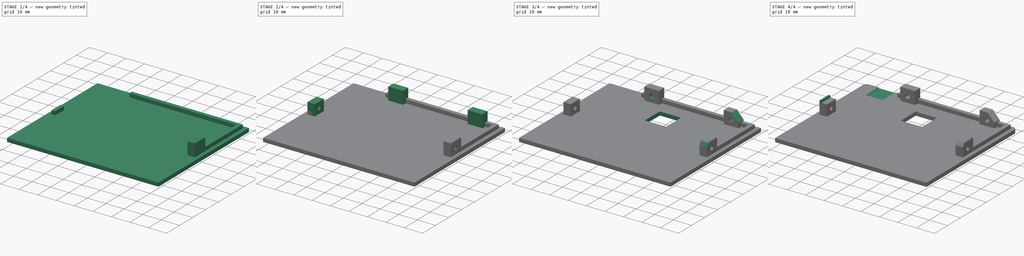
[diagram: build sequence overview — one tinted view per stage of 4, left to right]
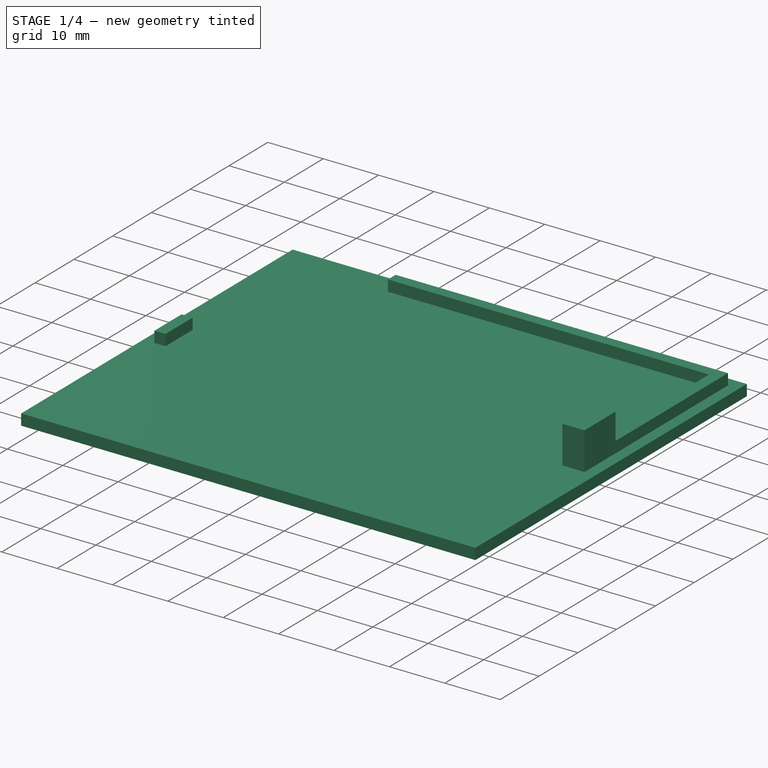
[diagram: stage 1 of 4 — iso view after this stage's code; geometry added in this stage tinted green]
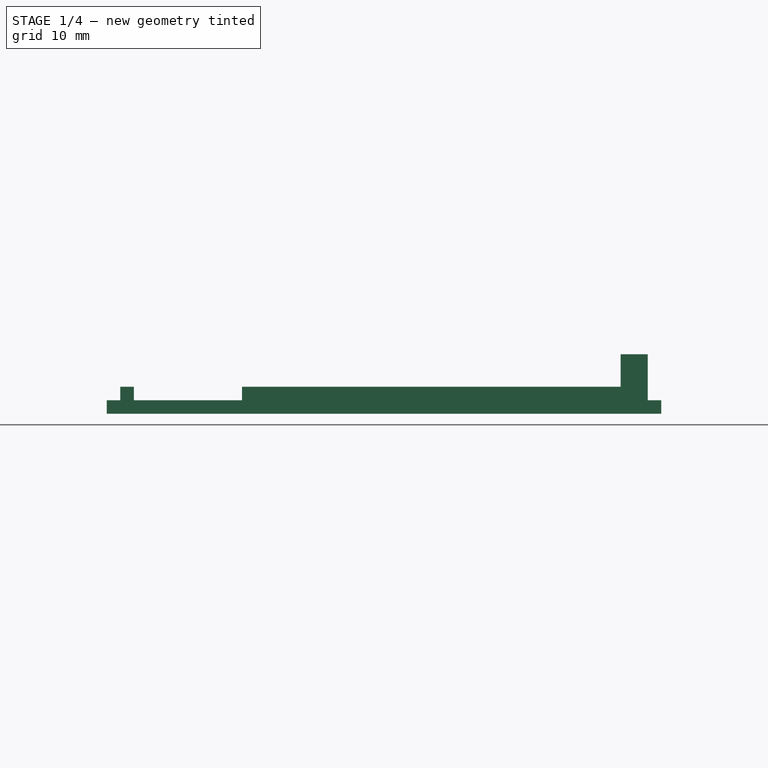
[diagram: stage 1 of 4 — front view after this stage's code; geometry added in this stage tinted green]
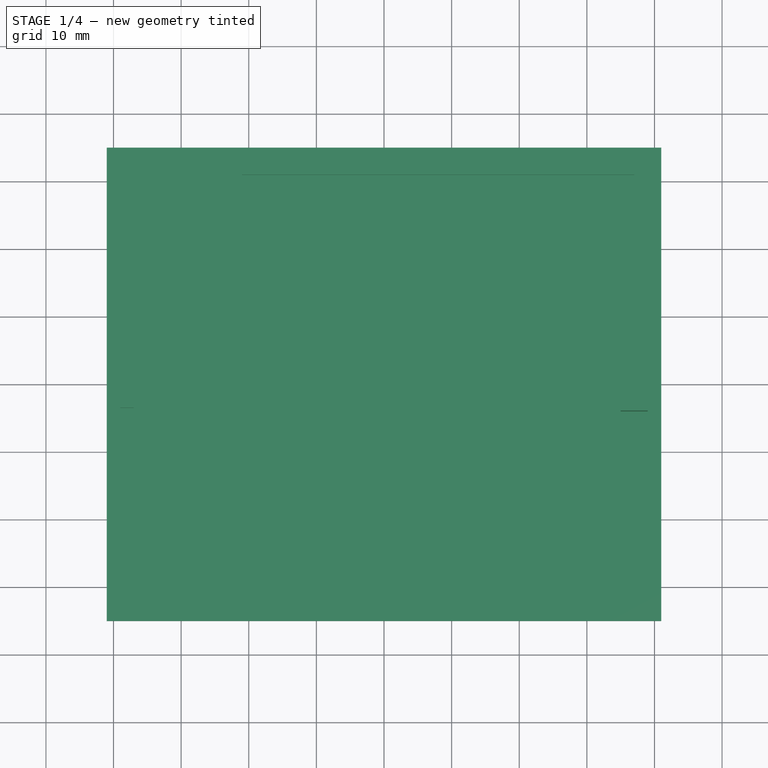
[diagram: stage 1 of 4 — top view after this stage's code; geometry added in this stage tinted green]
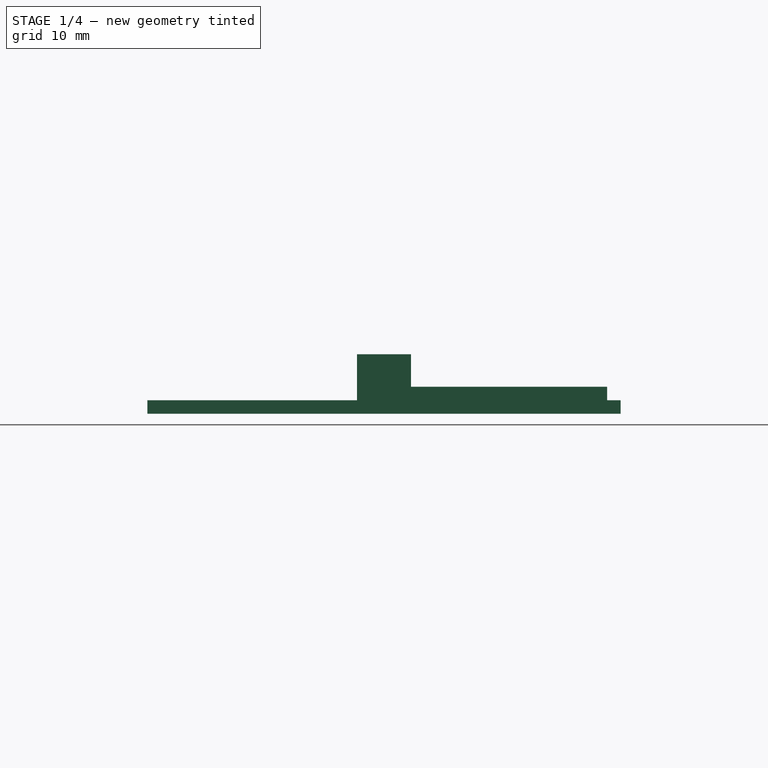
[diagram: stage 1 of 4 — right view after this stage's code; geometry added in this stage tinted green]
FCSTD DOCUMENT  (FreeCAD 0.21R33771 (Git))
Label: Back_alone
License: All rights reserved
LicenseURL: http://en.wikipedia.org/wiki/All_rights_reserved
objects: Sketcher::SketchObject×14, PartDesign::Pad×6, PartDesign::Pocket×6, PartDesign::Fillet×1, PartDesign::Body×1
note: 41 computed .brp shape members not serialized (recipe doc carries the construction recipe); baked Part::Feature solids carry a one-line shape summary decoded from their .brp

FEATURE [Sketcher::SketchObject] Sketch  label="Base"
  FullyConstrained = true
  MapMode = 5
  Support = -> [XY_Plane]
  sketch-geometry (5):
    g0: LineSegment StartX=-41 StartY=35 StartZ=0 EndX=-41 EndY=-35 EndZ=0
    g1: LineSegment StartX=-41 StartY=-35 StartZ=0 EndX=41 EndY=-35 EndZ=0
    g2: LineSegment StartX=41 StartY=-35 StartZ=0 EndX=41 EndY=35 EndZ=0
    g3: LineSegment StartX=41 StartY=35 StartZ=0 EndX=-41 EndY=35 EndZ=0
    g4: GeomPoint X=0 Y=0 Z=0
  constraints (12):
    c: Coincident(g0,g1)
    c: Coincident(g1,g2)
    c: Coincident(g2,g3)
    c: Coincident(g3,g0)
    c: Horizontal(g1)
    c: Horizontal(g3)
    c: Vertical(g0)
    c: Vertical(g2)
    c: Symmetric(g1,g0,g4)
    c: Coincident(g4,g-1)
    c: DistanceX(g3,g3) = 82
    c: DistanceY(g2,g2) = 70
FEATURE [PartDesign::Pad] Pad  label="Base001"
  Direction = (0,0,1)
  Length = 2
  Length2 = 10
  Profile = -> Sketch
  ReferenceAxis = -> Sketch [N_Axis]
  Type = 0
FEATURE [Sketcher::SketchObject] Sketch001
  ExternalGeometry = -> [Pad]
  FullyConstrained = true
  MapMode = 5
  Placement = pos=(0,0,2) rot=(0,0,1;0rad)
  Support = -> [Pad]
  sketch-geometry (12):
    g0: LineSegment StartX=-39 StartY=-3.5 StartZ=0 EndX=-39 EndY=3.5 EndZ=0
    g1: LineSegment StartX=-21 StartY=33 StartZ=0 EndX=39 EndY=33 EndZ=0
    g2: LineSegment StartX=39 StartY=33 StartZ=0 EndX=39 EndY=-4 EndZ=0
    g3: LineSegment StartX=39 StartY=-4 StartZ=0 EndX=37 EndY=-4 EndZ=0
    g4: LineSegment StartX=37 StartY=-4 StartZ=0 EndX=37 EndY=31 EndZ=0
    g5: LineSegment StartX=37 StartY=31 StartZ=0 EndX=-21 EndY=31 EndZ=0
    g6: LineSegment StartX=-37 StartY=3.5 StartZ=0 EndX=-37 EndY=-3.5 EndZ=0
    g7: LineSegment StartX=-37 StartY=-3.5 StartZ=0 EndX=-39 EndY=-3.5 EndZ=0
    g8: LineSegment StartX=-21 StartY=33 StartZ=0 EndX=-21 EndY=31 EndZ=0
    g9: LineSegment StartX=-39 StartY=3.5 StartZ=0 EndX=-37 EndY=3.5 EndZ=0
    g10: LineSegment StartX=-21 StartY=33 StartZ=0 EndX=-39 EndY=33 EndZ=0
    g11: LineSegment StartX=-39 StartY=33 StartZ=0 EndX=-39 EndY=3.5 EndZ=0
  constraints (35):
    c: Vertical(g0)
    c: Horizontal(g1)
    c: Coincident(g2,g1)
    c: Vertical(g2)
    c: Coincident(g3,g2)
    c: Horizontal(g3)
    c: Coincident(g4,g3)
    c: Vertical(g4)
    c: Coincident(g5,g4)
    c: Horizontal(g5)
    c: Vertical(g6)
    c: Coincident(g7,g6)
    c: Coincident(g7,g0)
    c: Horizontal(g7)
    c: Horizontal(g9)
    c: Vertical(g8)
    c: Equal(g9,g8)
    c: Equal(g8,g3)
    c: Coincident(g1,g8)
    c: Coincident(g5,g8)
    c: Coincident(g6,g9)
    c: Coincident(g0,g9)
    c: Coincident(g10,g1)
    c: Horizontal(g10)
    c: Coincident(g11,g10)
    c: Coincident(g11,g0)
    c: Vertical(g11)
    c: DistanceX(g10,g1) = 78
    c: DistanceY(g0,g0) = 7
    c: DistanceY(g1,g-3) = 2
    c: DistanceX(g1,g1) = 60
    c: DistanceY(g2,g-3) = 39
    c: DistanceX(g3,g3) = 2
    c: DistanceX(g1,g-3) = 2
    c: DistanceY(g0,g10) = 29.5
FEATURE [PartDesign::Pad] Pad001
  BaseFeature = -> Pad
  Direction = (0,0,1)
  Length = 2
  Length2 = 10
  Profile = -> Sketch001
  ReferenceAxis = -> Sketch001 [N_Axis]
  Type = 0
FEATURE [Sketcher::SketchObject] Sketch011
  ExternalGeometry = -> [Pad001]
  FullyConstrained = true
  MapMode = 5
  Placement = pos=(39,0,0) rot=(0.57735,0.57735,0.57735;2.0944rad)
  Support = -> [Pad001]
  sketch-geometry (4):
    g0: LineSegment StartX=4 StartY=2 StartZ=0 EndX=4 EndY=8.8 EndZ=0
    g1: LineSegment StartX=-4 StartY=2 StartZ=0 EndX=-4 EndY=8.8 EndZ=0
    g2: LineSegment StartX=4 StartY=8.8 StartZ=0 EndX=-4 EndY=8.8 EndZ=0
    g3: LineSegment StartX=-4 StartY=2 StartZ=0 EndX=4 EndY=2 EndZ=0
  constraints (12):
    c: Vertical(g0)
    c: Vertical(g1)
    c: Coincident(g2,g0)
    c: Coincident(g2,g1)
    c: Horizontal(g2)
    c: DistanceX(g0,g-3) = 31
    c: DistanceY(g-3,g0) = 6.8
    c: Coincident(g3,g1)
    c: Coincident(g3,g0)
    c: Horizontal(g3)
    c: Horizontal(g0,g-3)
    c: DistanceX(g2,g2) = 8
FEATURE [Sketcher::SketchObject] Sketch010
  ExternalGeometry = -> [Pad001]
  FullyConstrained = true
  MapMode = 5
  Placement = pos=(0,33,0) rot=(0,0.707107,0.707107;3.14159rad)
  Support = -> [Pad001]
  sketch-geometry (8):
    g0: LineSegment StartX=-25 StartY=8.8 StartZ=0 EndX=-25 EndY=2 EndZ=0
    g1: LineSegment StartX=18 StartY=8.8 StartZ=0 EndX=18 EndY=2 EndZ=0
    g2: LineSegment StartX=18 StartY=8.8 StartZ=0 EndX=10 EndY=8.8 EndZ=0
    g3: LineSegment StartX=10 StartY=8.8 StartZ=0 EndX=10 EndY=2 EndZ=0
    g4: LineSegment StartX=10 StartY=2 StartZ=0 EndX=18 EndY=2 EndZ=0
    g5: LineSegment StartX=-25 StartY=8.8 StartZ=0 EndX=-33 EndY=8.8 EndZ=0
    g6: LineSegment StartX=-33 StartY=8.8 StartZ=0 EndX=-33 EndY=2 EndZ=0
    g7: LineSegment StartX=-33 StartY=2 StartZ=0 EndX=-25 EndY=2 EndZ=0
  constraints (24):
    c: Vertical(g1)
    c: Vertical(g0)
    c: Equal(g1,g0)
    c: Horizontal(g-3,g0)
    c: Horizontal(g0,g1)
    c: DistanceX(g-3,g0) = 14
    c: DistanceX(g-3,g1) = 57
    c: Coincident(g2,g1)
    c: Horizontal(g2)
    c: Coincident(g3,g2)
    c: Vertical(g3)
    c: Coincident(g4,g3)
    c: Coincident(g4,g1)
    c: Horizontal(g4)
    c: Coincident(g5,g0)
    c: Horizontal(g5)
    c: Coincident(g6,g5)
    c: Coincident(g7,g6)
    c: Coincident(g7,g0)
    c: Vertical(g6)
    c: Horizontal(g7)
    c: DistanceX(g5,g5) = 8
    c: DistanceY(g6,g6) = 6.8
    c: Equal(g5,g2)
FEATURE [PartDesign::Pad] Pad002
  BaseFeature = -> Pad001
  Direction = (1,0,0)
  Length = 4
  Length2 = 10
  Profile = -> Sketch011
  ReferenceAxis = -> Sketch011 [N_Axis]
  Reversed = true
  Type = 0
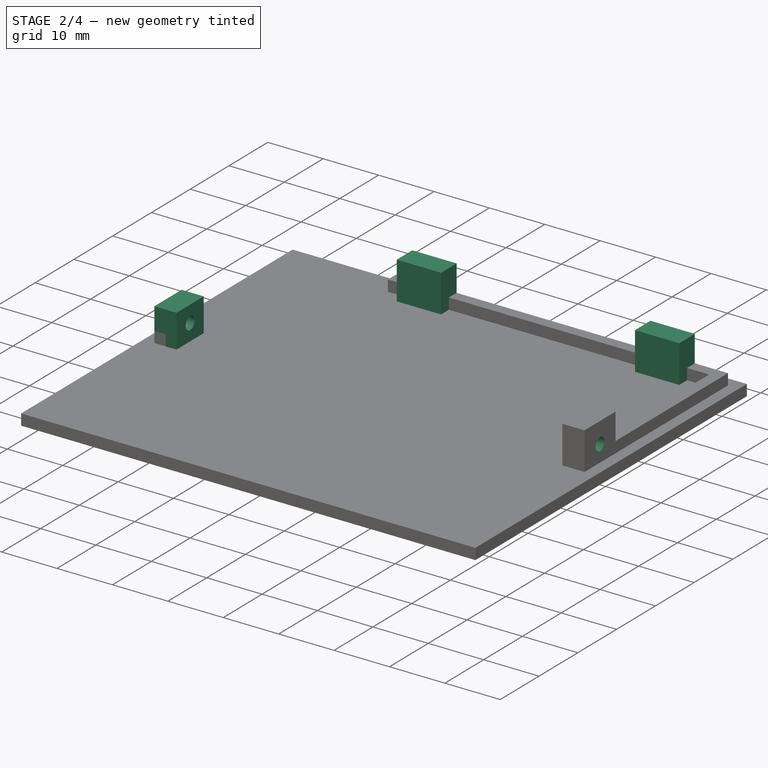
[diagram: stage 2 of 4 — iso view after this stage's code; geometry added in this stage tinted green]
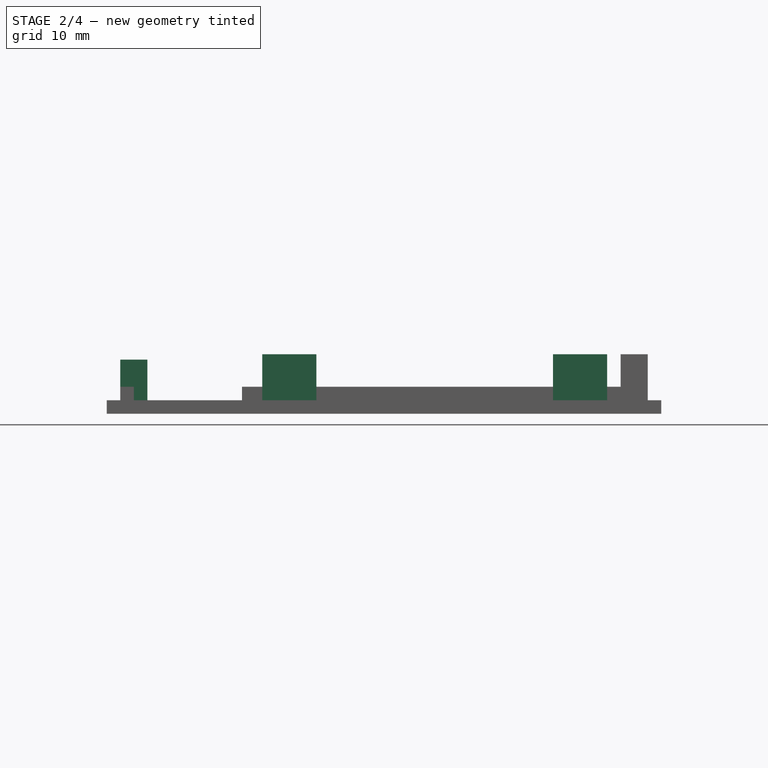
[diagram: stage 2 of 4 — front view after this stage's code; geometry added in this stage tinted green]
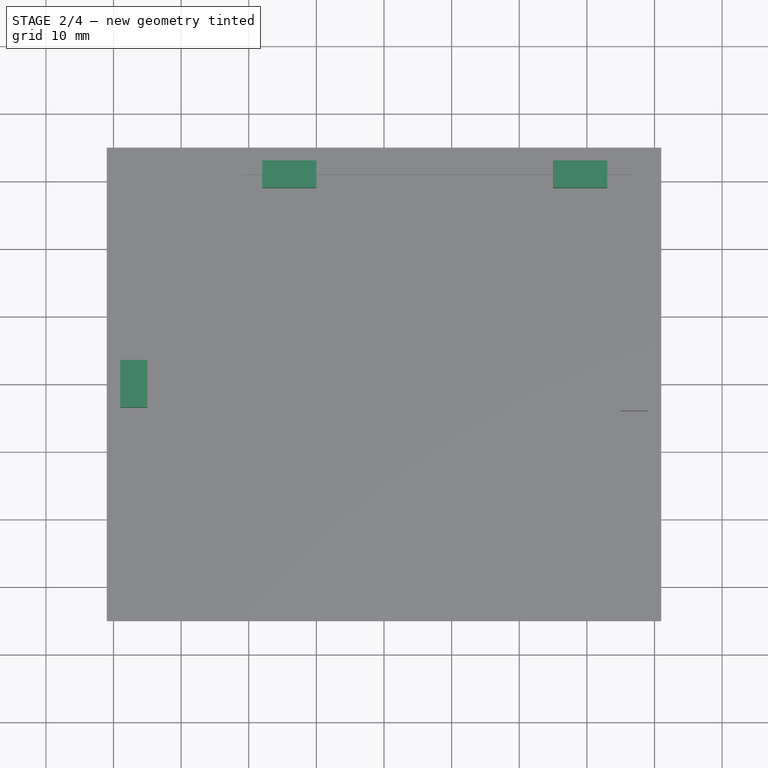
[diagram: stage 2 of 4 — top view after this stage's code; geometry added in this stage tinted green]
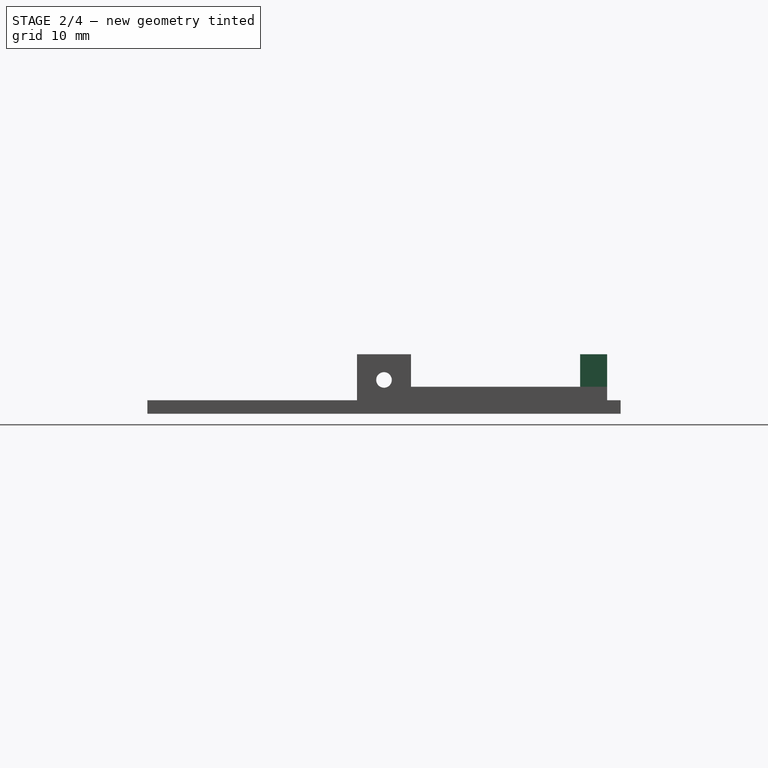
[diagram: stage 2 of 4 — right view after this stage's code; geometry added in this stage tinted green]
FEATURE [Sketcher::SketchObject] Sketch012
  ExternalGeometry = -> [Pad002]
  FullyConstrained = true
  MapMode = 5
  Placement = pos=(-39,0,0) rot=(0.57735,-0.57735,-0.57735;2.0944rad)
  Support = -> [Pad002]
  sketch-geometry (4):
    g0: LineSegment StartX=-3.5 StartY=8 StartZ=0 EndX=3.5 EndY=8 EndZ=0
    g1: LineSegment StartX=3.5 StartY=8 StartZ=0 EndX=3.5 EndY=2 EndZ=0
    g2: LineSegment StartX=3.5 StartY=2 StartZ=0 EndX=-3.5 EndY=2 EndZ=0
    g3: LineSegment StartX=-3.5 StartY=2 StartZ=0 EndX=-3.5 EndY=8 EndZ=0
  constraints (10):
    c: Coincident(g0,g1)
    c: Coincident(g1,g2)
    c: Coincident(g2,g3)
    c: Coincident(g3,g0)
    c: Horizontal(g0)
    c: Vertical(g1)
    c: Vertical(g3)
    c: Coincident(g1,g-3)
    c: Coincident(g2,g-3)
    c: DistanceY(g1,g1) = 6
FEATURE [PartDesign::Pad] Pad003
  BaseFeature = -> Pad002
  Direction = (-1,0,0)
  Length = 4
  Length2 = 10
  Profile = -> Sketch012
  ReferenceAxis = -> Sketch012 [N_Axis]
  Reversed = true
  Type = 0
FEATURE [PartDesign::Pad] Pad004
  BaseFeature = -> Pad003
  Direction = (0,1,-2e-16)
  Length = 4
  Length2 = 10
  Profile = -> Sketch010
  ReferenceAxis = -> Sketch010 [N_Axis]
  Reversed = true
  Type = 0
FEATURE [Sketcher::SketchObject] Sketch013
  ExternalGeometry = -> [Pad004]
  FullyConstrained = true
  MapMode = 5
  Placement = pos=(39,0,0) rot=(0.57735,0.57735,0.57735;2.0944rad)
  Support = -> [Pad004]
  sketch-geometry (1):
    g0: Circle CenterX=-4e-16 CenterY=5 CenterZ=0 NormalX=0 NormalY=0 NormalZ=1 AngleXU=0 Radius=1.15
  constraints (3):
    c: Diameter(g0) = 2.3
    c: DistanceY(g-3,g0) = 3
    c: DistanceX(g0,g-3) = 4
FEATURE [PartDesign::Pocket] Pocket
  BaseFeature = -> Pad004
  Direction = (-1,0,0)
  Length = 5
  Length2 = 5
  Profile = -> Sketch013
  ReferenceAxis = -> Sketch013 [N_Axis]
  Type = 1
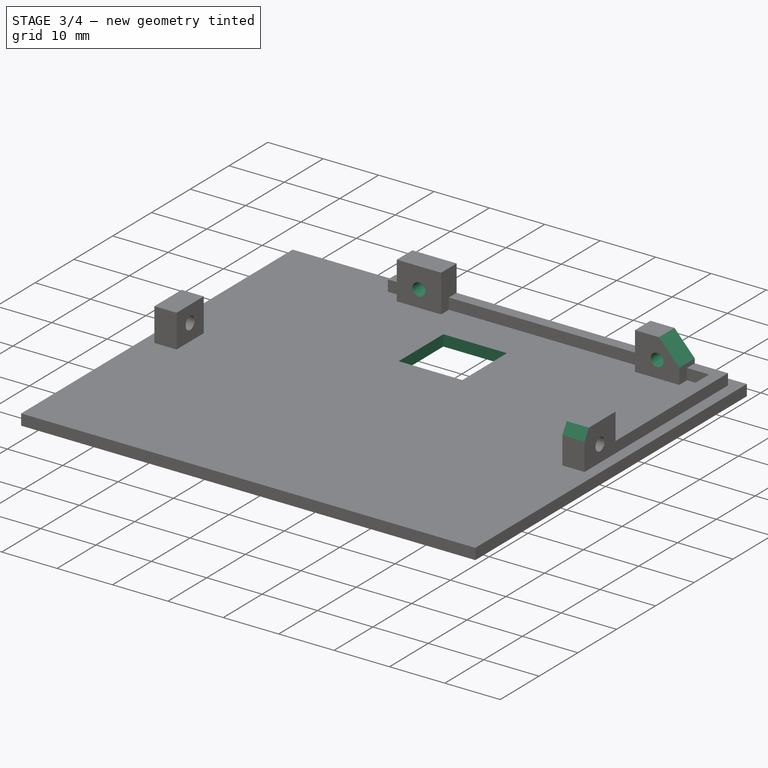
[diagram: stage 3 of 4 — iso view after this stage's code; geometry added in this stage tinted green]
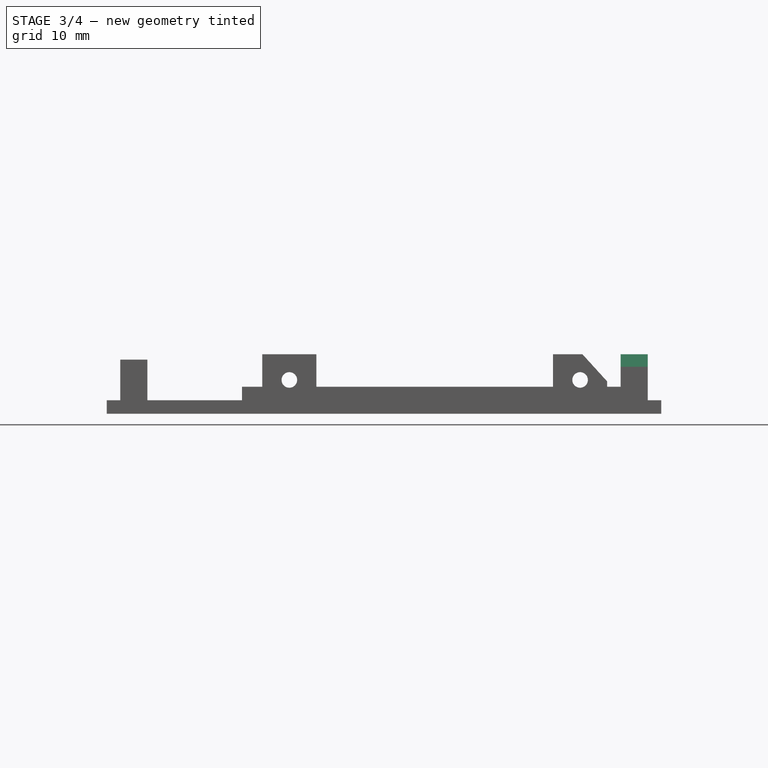
[diagram: stage 3 of 4 — front view after this stage's code; geometry added in this stage tinted green]
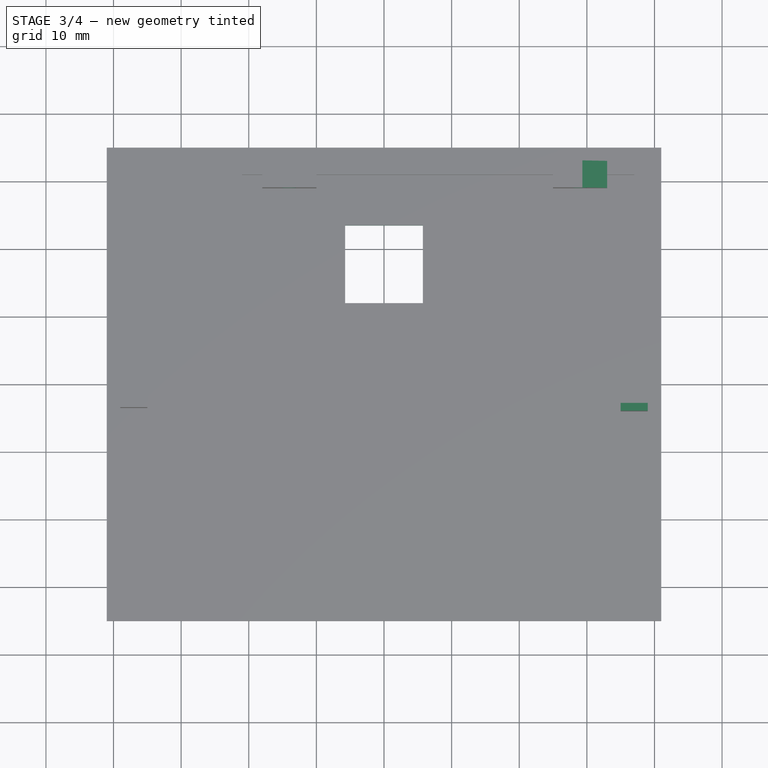
[diagram: stage 3 of 4 — top view after this stage's code; geometry added in this stage tinted green]
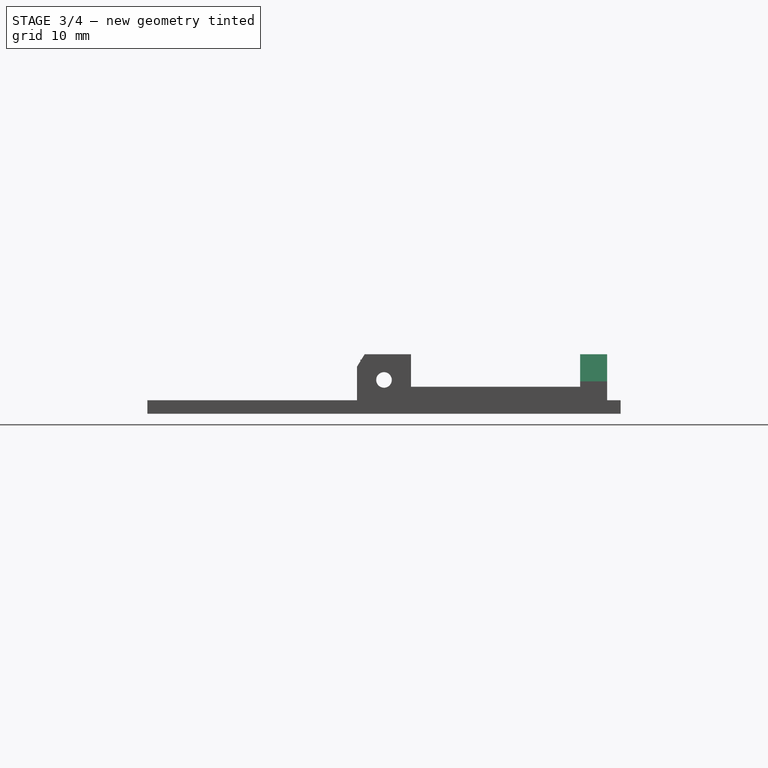
[diagram: stage 3 of 4 — right view after this stage's code; geometry added in this stage tinted green]
FEATURE [Sketcher::SketchObject] Sketch014
  ExternalGeometry = -> [Pocket]
  FullyConstrained = true
  MapMode = 5
  Placement = pos=(35,0,0) rot=(0.57735,-0.57735,-0.57735;2.0944rad)
  Support = -> [Pocket]
  sketch-geometry (7):
    g0: LineSegment StartX=1.41451 StartY=2.55 StartZ=0 EndX=2.82902 EndY=5 EndZ=0
    g1: LineSegment StartX=2.82902 StartY=5 StartZ=0 EndX=1.41451 EndY=7.45 EndZ=0
    g2: LineSegment StartX=1.41451 StartY=7.45 StartZ=0 EndX=-1.41451 EndY=7.45 EndZ=0
    g3: LineSegment StartX=-1.41451 StartY=7.45 StartZ=0 EndX=-2.82902 EndY=5 EndZ=0
    g4: LineSegment StartX=-2.82902 StartY=5 StartZ=0 EndX=-1.41451 EndY=2.55 EndZ=0
    g5: LineSegment StartX=-1.41451 StartY=2.55 StartZ=0 EndX=1.41451 EndY=2.55 EndZ=0
    g6: Circle CenterX=4e-16 CenterY=5 CenterZ=0 NormalX=0 NormalY=0 NormalZ=1 AngleXU=0 Radius=2.82902
  constraints (16):
    c: Coincident(g0,g1)
    c: Coincident(g1,g2)
    c: Coincident(g2,g3)
    c: Coincident(g3,g4)
    c: Coincident(g4,g5)
    c: Coincident(g5,g0)
    c: Equal(g0, g1-g5) x5
    c: PointOnObject(g0,g6)
    c: PointOnObject(g1,g6)
    c: PointOnObject(g2,g6)
    c: PointOnObject(g3,g6)
    c: PointOnObject(g4,g6)
    c: PointOnObject(g5,g6)
    c: Coincident(g6,g-3)
    c: Horizontal(g5)
    c: DistanceY(g0,g1) = 4.9
FEATURE [Sketcher::SketchObject] Sketch016
  ExternalGeometry = -> [Pocket]
  FullyConstrained = true
  MapMode = 5
  Placement = pos=(0,26.5,-1.2e-14) rot=(1,0,0;1.5708rad)
  sketch-geometry (2):
    g0: Circle CenterX=-14 CenterY=5 CenterZ=0 NormalX=0 NormalY=0 NormalZ=1 AngleXU=0 Radius=1.15
    g1: Circle CenterX=29 CenterY=5 CenterZ=0 NormalX=0 NormalY=0 NormalZ=1 AngleXU=0 Radius=1.15
  constraints (6):
    c: Equal(g0,g1)
    c: Diameter(g0) = 2.3
    c: Horizontal(g0,g1)
    c: DistanceX(g1,g-3) = 12
    c: DistanceX(g0,g-3) = 55
    c: DistanceY(g-3,g1) = 3
FEATURE [Sketcher::SketchObject] Sketch017
  FullyConstrained = false
  MapMode = 5
  Placement = pos=(0,26.5,-1.2e-14) rot=(1,0,0;1.5708rad)
  sketch-geometry (14):
    g0: LineSegment StartX=-11.171 StartY=5 StartZ=0 EndX=-12.5855 EndY=7.45 EndZ=0
    g1: LineSegment StartX=-12.5855 StartY=7.45 StartZ=0 EndX=-15.4145 EndY=7.45 EndZ=0
    g2: LineSegment StartX=-15.4145 StartY=7.45 StartZ=0 EndX=-16.829 EndY=5 EndZ=0
    g3: LineSegment StartX=-16.829 StartY=5 StartZ=0 EndX=-15.4145 EndY=2.55 EndZ=0
    g4: LineSegment StartX=-15.4145 StartY=2.55 StartZ=0 EndX=-12.5855 EndY=2.55 EndZ=0
    g5: LineSegment StartX=-12.5855 StartY=2.55 StartZ=0 EndX=-11.171 EndY=5 EndZ=0
    g6: Circle CenterX=-14 CenterY=5 CenterZ=0 NormalX=0 NormalY=0 NormalZ=1 AngleXU=0 Radius=2.82902
    g7: LineSegment StartX=31.829 StartY=5 StartZ=0 EndX=30.4145 EndY=7.45 EndZ=0
    g8: LineSegment StartX=30.4145 StartY=7.45 StartZ=0 EndX=27.5855 EndY=7.45 EndZ=0
    g9: LineSegment StartX=27.5855 StartY=7.45 StartZ=0 EndX=26.171 EndY=5 EndZ=0
    g10: LineSegment StartX=26.171 StartY=5 StartZ=0 EndX=27.5855 EndY=2.55 EndZ=0
    g11: LineSegment StartX=27.5855 StartY=2.55 StartZ=0 EndX=30.4145 EndY=2.55 EndZ=0
    g12: LineSegment StartX=30.4145 StartY=2.55 StartZ=0 EndX=31.829 EndY=5 EndZ=0
    g13: Circle CenterX=29 CenterY=5 CenterZ=0 NormalX=0 NormalY=0 NormalZ=1 AngleXU=0 Radius=2.82902
  constraints (30):
    c: Coincident(g0,g1)
    c: Coincident(g1,g2)
    c: Coincident(g2,g3)
    c: Coincident(g3,g4)
    c: Coincident(g4,g5)
    c: Coincident(g5,g0)
    c: Equal(g0, g1-g5) x5
    c: PointOnObject(g0,g6)
    c: PointOnObject(g1,g6)
    c: PointOnObject(g2,g6)
    c: PointOnObject(g3,g6)
    c: PointOnObject(g4,g6)
    c: PointOnObject(g5,g6)
    c: Coincident(g7,g8)
    c: Coincident(g8,g9)
    c: Coincident(g9,g10)
    c: Coincident(g10,g11)
    c: Coincident(g11,g12)
    c: Coincident(g12,g7)
    c: Equal(g7, g8-g12) x5
    c: PointOnObject(g7,g13)
    c: PointOnObject(g8,g13)
    c: PointOnObject(g9,g13)
    c: PointOnObject(g10,g13)
    c: PointOnObject(g11,g13)
    c: PointOnObject(g12,g13)
    c: Horizontal(g8)
    c: Horizontal(g1)
    c: Horizontal(g0,g8)
    c: DistanceY(g3,g1) = 4.9
FEATURE [PartDesign::Pocket] Pocket001
  BaseFeature = -> Pocket
  Direction = (0,1,-2e-16)
  Length = 5
  Length2 = 5
  Profile = -> Sketch016
  ReferenceAxis = -> Sketch016 [N_Axis]
  Type = 1
FEATURE [Sketcher::SketchObject] Sketch018  label="Konektor"
  ExternalGeometry = -> [Pocket001]
  FullyConstrained = true
  MapMode = 5
  Placement = pos=(0,0,2) rot=(0,0,1;0rad)
  Support = -> [Pocket001]
  sketch-geometry (4):
    g0: LineSegment StartX=-5.75 StartY=23.5 StartZ=0 EndX=5.75 EndY=23.5 EndZ=0
    g1: LineSegment StartX=5.75 StartY=23.5 StartZ=0 EndX=5.75 EndY=12 EndZ=0
    g2: LineSegment StartX=5.75 StartY=12 StartZ=0 EndX=-5.75 EndY=12 EndZ=0
    g3: LineSegment StartX=-5.75 StartY=12 StartZ=0 EndX=-5.75 EndY=23.5 EndZ=0
  constraints (11):
    c: Coincident(g0,g1)
    c: Coincident(g1,g2)
    c: Coincident(g2,g3)
    c: Coincident(g3,g0)
    c: Horizontal(g0)
    c: Vertical(g1)
    c: Vertical(g3)
    c: DistanceX(g0,g0) = 11.5
    c: Symmetric(g2,g1,g-2)
    c: Equal(g0,g1)
    c: DistanceY(g0,g-3) = 11.5
FEATURE [PartDesign::Pocket] Pocket002  label="Konektor001"
  BaseFeature = -> Pocket001
  Direction = (0,0,-1)
  Length = 5
  Length2 = 5
  Profile = -> Sketch018
  ReferenceAxis = -> Sketch018 [N_Axis]
  Type = 0
FEATURE [Sketcher::SketchObject] Sketch019
  FullyConstrained = false
  MapMode = 5
  Placement = pos=(0,29,0) rot=(1,0,0;1.5708rad)
  Support = -> [Pocket002]
  sketch-geometry (3):
    g0: LineSegment StartX=29.1259 StartY=9.0429 StartZ=0 EndX=33.2589 EndY=4.49973 EndZ=0
    g1: LineSegment StartX=33.2589 StartY=4.49973 StartZ=0 EndX=33.2589 EndY=9.0429 EndZ=0
    g2: LineSegment StartX=33.2589 StartY=9.0429 StartZ=0 EndX=29.1259 EndY=9.0429 EndZ=0
  constraints (5):
    c: Coincident(g1,g0)
    c: Vertical(g1)
    c: Coincident(g2,g1)
    c: Coincident(g2,g0)
    c: Horizontal(g2)
FEATURE [PartDesign::Pocket] Pocket003
  BaseFeature = -> Pocket002
  Direction = (0,1,-2e-16)
  Length = 5
  Length2 = 5
  Profile = -> Sketch019
  ReferenceAxis = -> Sketch019 [N_Axis]
  Type = 0
FEATURE [Sketcher::SketchObject] Sketch020
  FullyConstrained = false
  MapMode = 5
  Placement = pos=(35,0,0) rot=(0.57735,-0.57735,-0.57735;2.0944rad)
  Support = -> [Pocket003]
  sketch-geometry (3):
    g0: LineSegment StartX=2.77547 StartY=8.93844 StartZ=0 EndX=6.38617 EndY=3.07957 EndZ=0
    g1: LineSegment StartX=6.38617 StartY=3.07957 StartZ=0 EndX=6.38617 EndY=8.93844 EndZ=0
    g2: LineSegment StartX=6.38617 StartY=8.93844 StartZ=0 EndX=2.77547 EndY=8.93844 EndZ=0
  constraints (5):
    c: Coincident(g1,g0)
    c: Vertical(g1)
    c: Coincident(g2,g1)
    c: Horizontal(g2)
    c: Coincident(g0,g2)
FEATURE [PartDesign::Pocket] Pocket004
  BaseFeature = -> Pocket003
  Direction = (1,0,0)
  Length = 5
  Length2 = 5
  Profile = -> Sketch020
  ReferenceAxis = -> Sketch020 [N_Axis]
  Type = 0
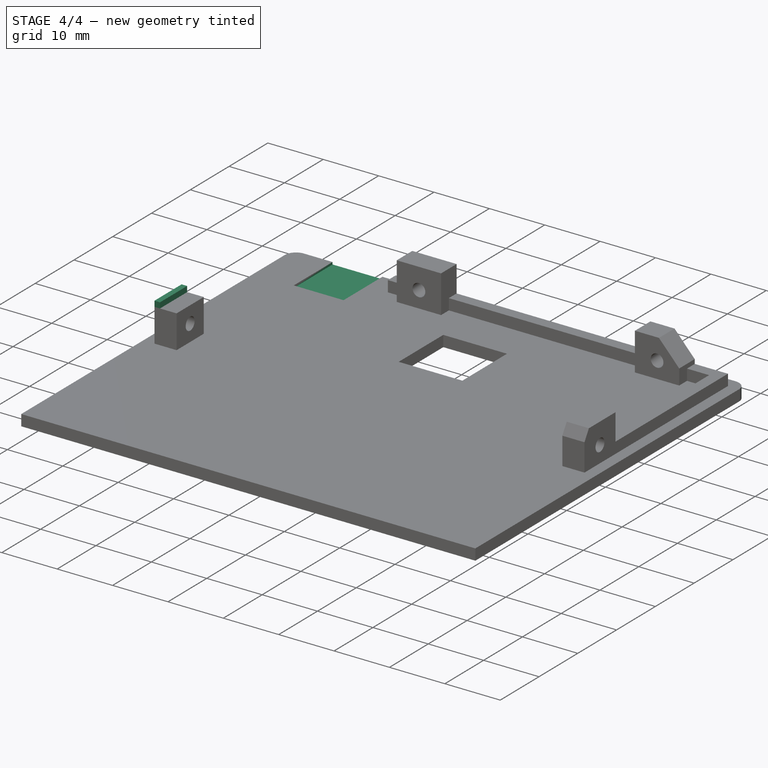
[diagram: stage 4 of 4 — iso view after this stage's code; geometry added in this stage tinted green]
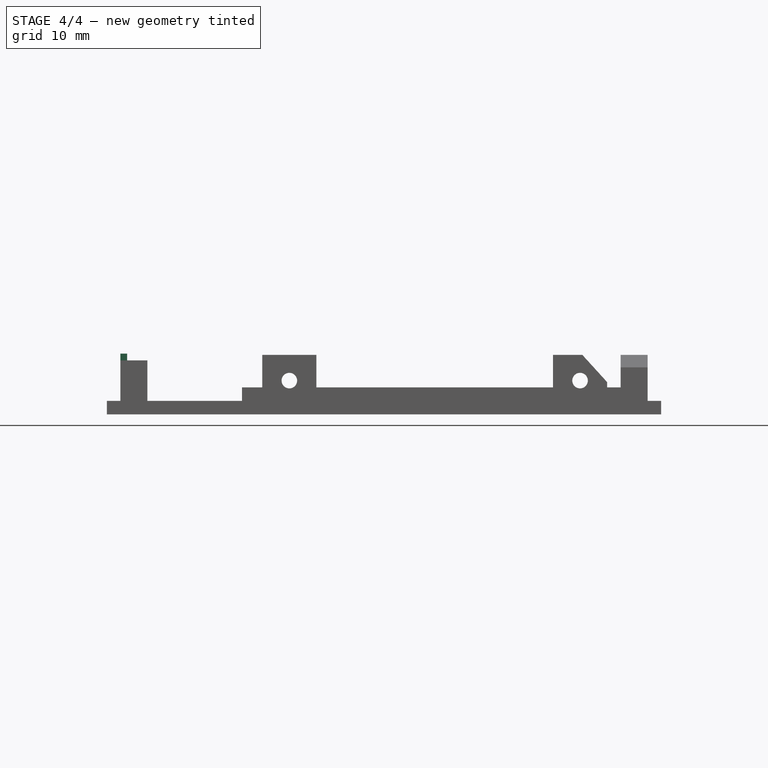
[diagram: stage 4 of 4 — front view after this stage's code; geometry added in this stage tinted green]
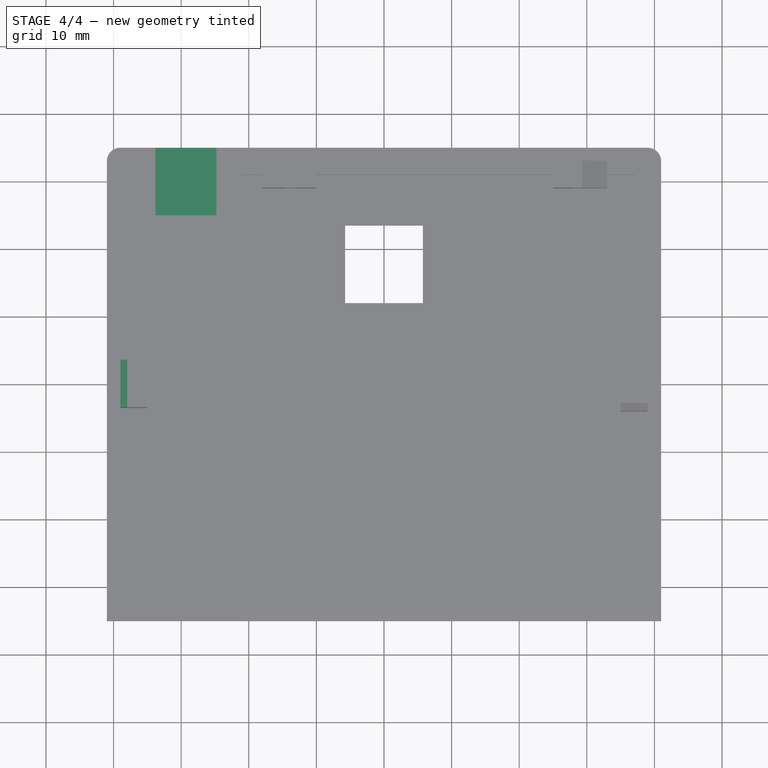
[diagram: stage 4 of 4 — top view after this stage's code; geometry added in this stage tinted green]
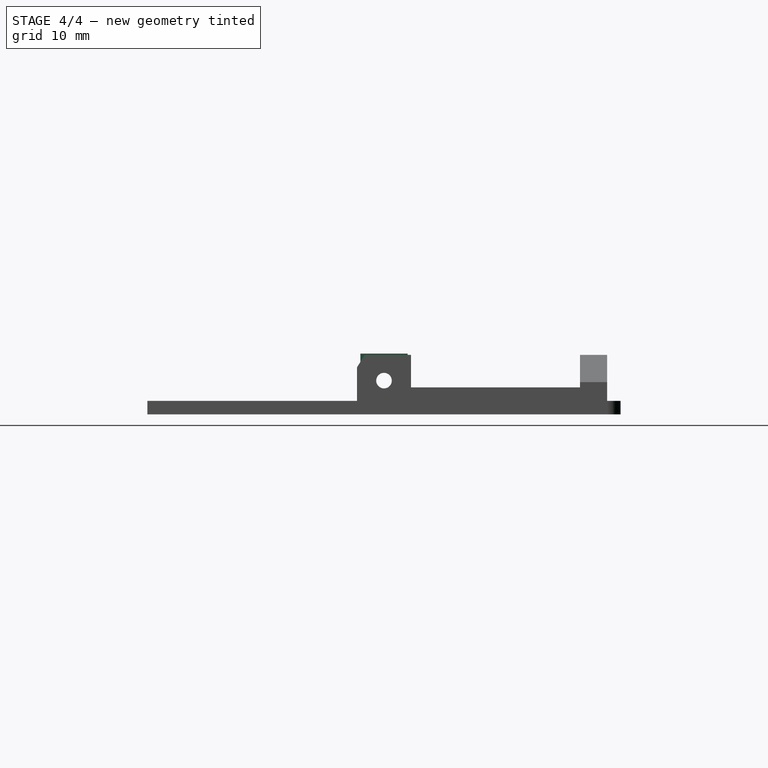
[diagram: stage 4 of 4 — right view after this stage's code; geometry added in this stage tinted green]
FEATURE [Sketcher::SketchObject] Sketch021
  ExternalGeometry = -> [Pocket004]
  FullyConstrained = true
  MapMode = 5
  Placement = pos=(0,0,8) rot=(0,0,1;0rad)
  Support = -> [Pocket004]
  sketch-geometry (4):
    g0: LineSegment StartX=-39 StartY=3.5 StartZ=0 EndX=-38 EndY=3.5 EndZ=0
    g1: LineSegment StartX=-38 StartY=3.5 StartZ=0 EndX=-38 EndY=-3.5 EndZ=0
    g2: LineSegment StartX=-38 StartY=-3.5 StartZ=0 EndX=-39 EndY=-3.5 EndZ=0
    g3: LineSegment StartX=-39 StartY=-3.5 StartZ=0 EndX=-39 EndY=3.5 EndZ=0
  constraints (10):
    c: Coincident(g0,g1)
    c: Coincident(g1,g2)
    c: Coincident(g2,g3)
    c: Coincident(g3,g0)
    c: Horizontal(g0)
    c: Horizontal(g2)
    c: Vertical(g1)
    c: Coincident(g0,g-3)
    c: Coincident(g2,g-4)
    c: DistanceX(g2,g2) = 1
FEATURE [PartDesign::Pad] Pad005
  BaseFeature = -> Pocket004
  Direction = (0,0,1)
  Length = 1
  Length2 = 10
  Profile = -> Sketch021
  ReferenceAxis = -> Sketch021 [N_Axis]
  Type = 0
FEATURE [Sketcher::SketchObject] Sketch022
  ExternalGeometry = -> [Pocket003]
  FullyConstrained = true
  MapMode = 5
  Placement = pos=(0,0,2) rot=(0,0,1;0rad)
  Support = -> [Pocket003]
  sketch-geometry (4):
    g0: LineSegment StartX=-33.8 StartY=35 StartZ=0 EndX=-24.8 EndY=35 EndZ=0
    g1: LineSegment StartX=-24.8 StartY=35 StartZ=0 EndX=-24.8 EndY=25 EndZ=0
    g2: LineSegment StartX=-24.8 StartY=25 StartZ=0 EndX=-33.8 EndY=25 EndZ=0
    g3: LineSegment StartX=-33.8 StartY=25 StartZ=0 EndX=-33.8 EndY=35 EndZ=0
  constraints (12):
    c: Coincident(g0,g1)
    c: Coincident(g1,g2)
    c: Coincident(g2,g3)
    c: Coincident(g3,g0)
    c: Horizontal(g0)
    c: Horizontal(g2)
    c: Vertical(g1)
    c: Vertical(g3)
    c: DistanceY(g3,g3) = 10
    c: Horizontal(g0,g-3)
    c: DistanceX(g-3,g0) = 7.2
    c: DistanceX(g0,g0) = 9
FEATURE [PartDesign::Pocket] Pocket005
  BaseFeature = -> Pad005
  Direction = (0,0,-1)
  Length = 0.4
  Length2 = 5
  Profile = -> Sketch022
  ReferenceAxis = -> Sketch022 [N_Axis]
  Type = 0
FEATURE [PartDesign::Fillet] Fillet
  Base = -> Pocket005 [Edge11,Edge1]
  BaseFeature = -> Pocket005
  Radius = 2
  SupportTransform = false
  UseAllEdges = false
FEATURE [PartDesign::Body] Body
  Group = -> [Sketch,Pad,Sketch001,Pad001,Sketch010,Sketch011,Pad002,Sketch012,Pad003,Pad004,Sketch013,Pocket,Sketch014,Sketch016,Sketch017,Pocket001,Sketch018,Pocket002,Sketch019,Pocket003,Sketch020,Pocket004,Sketch021,Pad005,Sketch022,Pocket005,Fillet]
  Origin = -> Origin
  Tip = -> Fillet
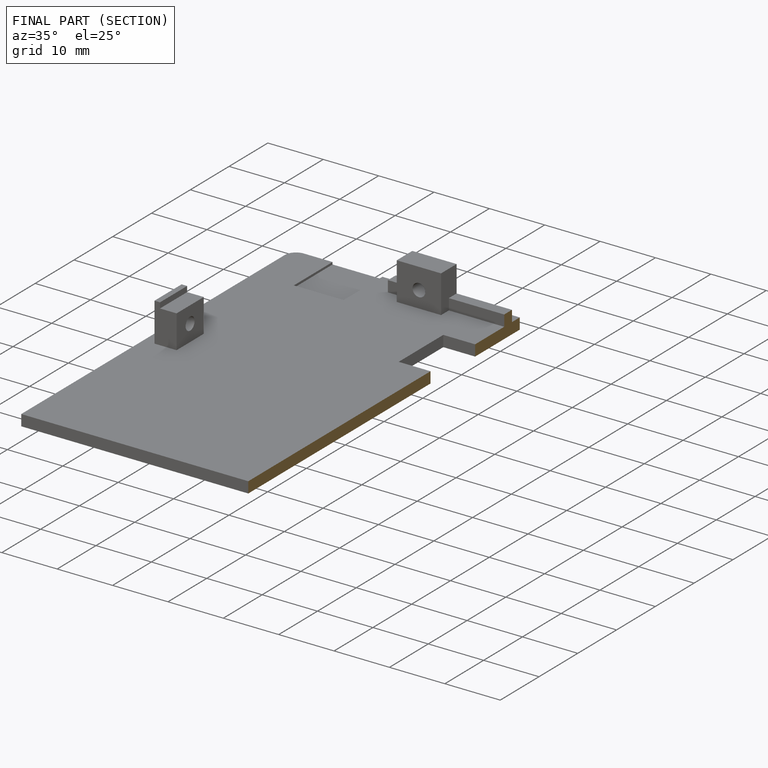
[diagram: finished part — half-section view (interior)]
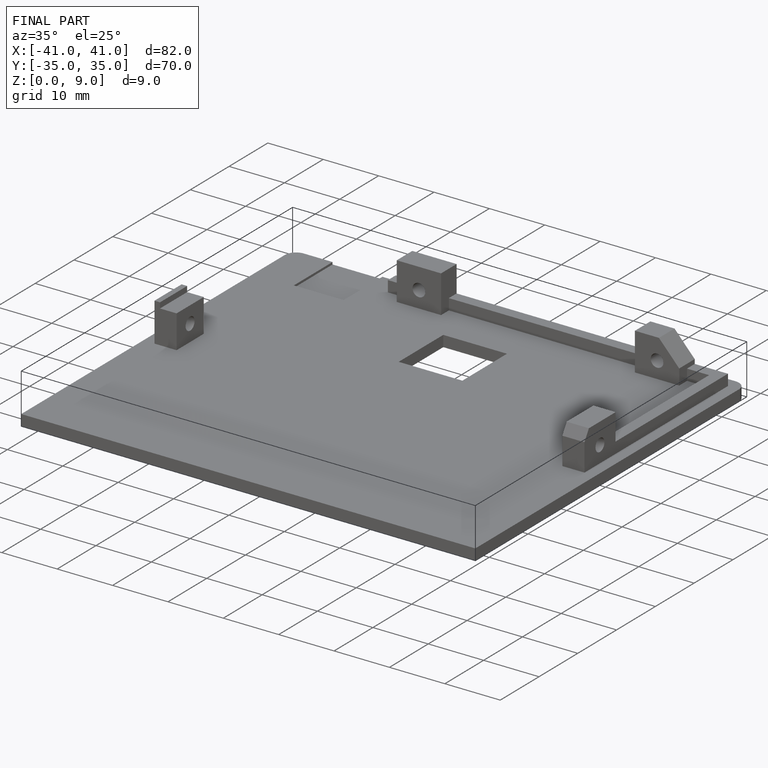
[diagram: finished part — iso view with bounding-box wireframe]
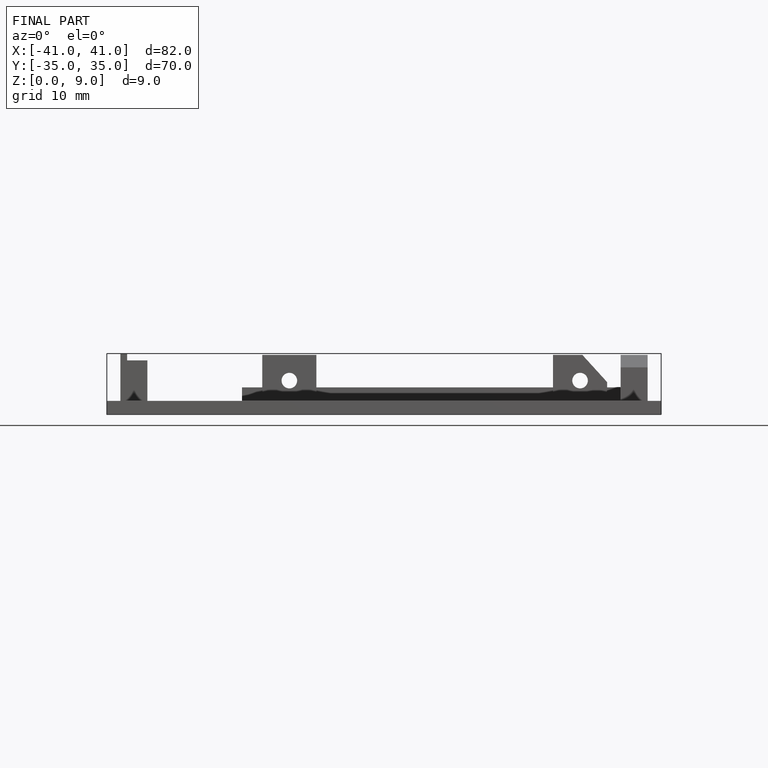
[diagram: finished part — front view with bounding-box wireframe]
